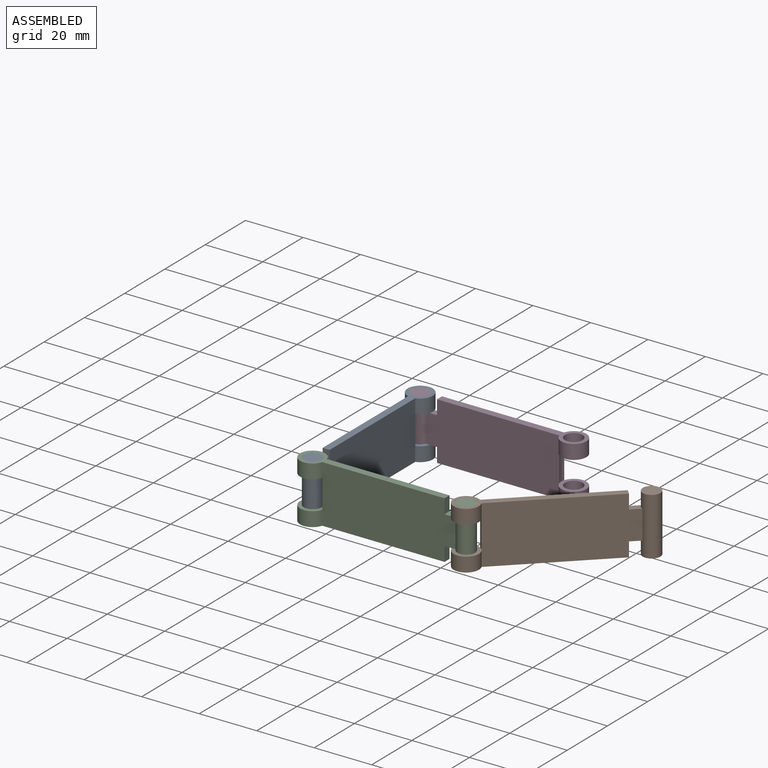
[diagram: assembled view]
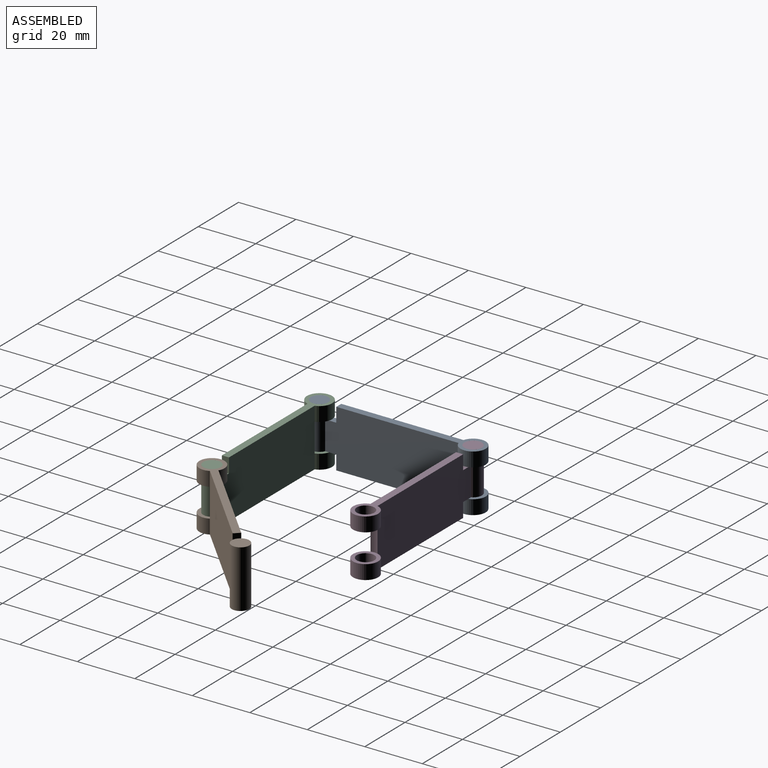
[diagram: assembled view, second angle]
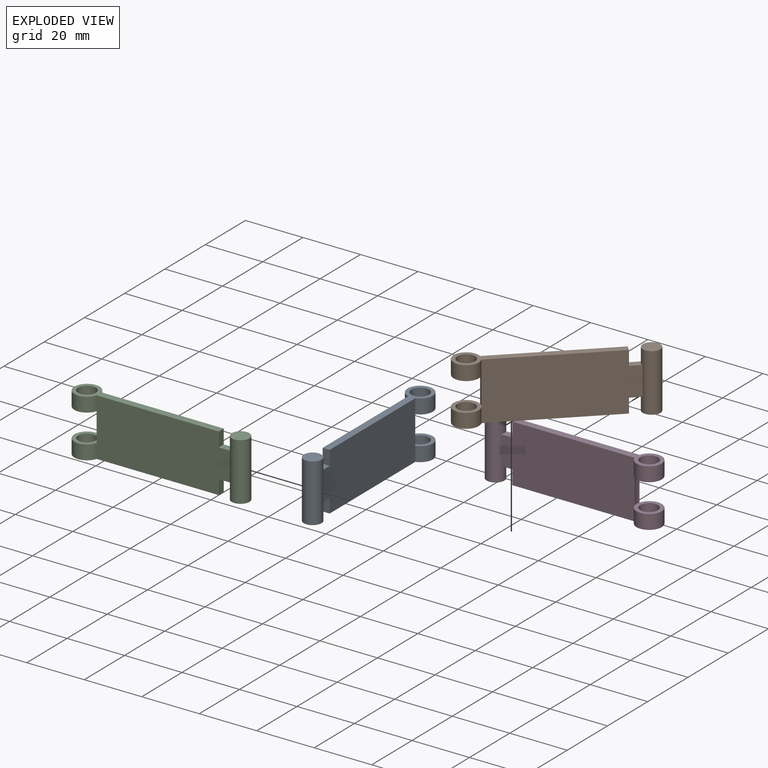
[diagram: exploded view]
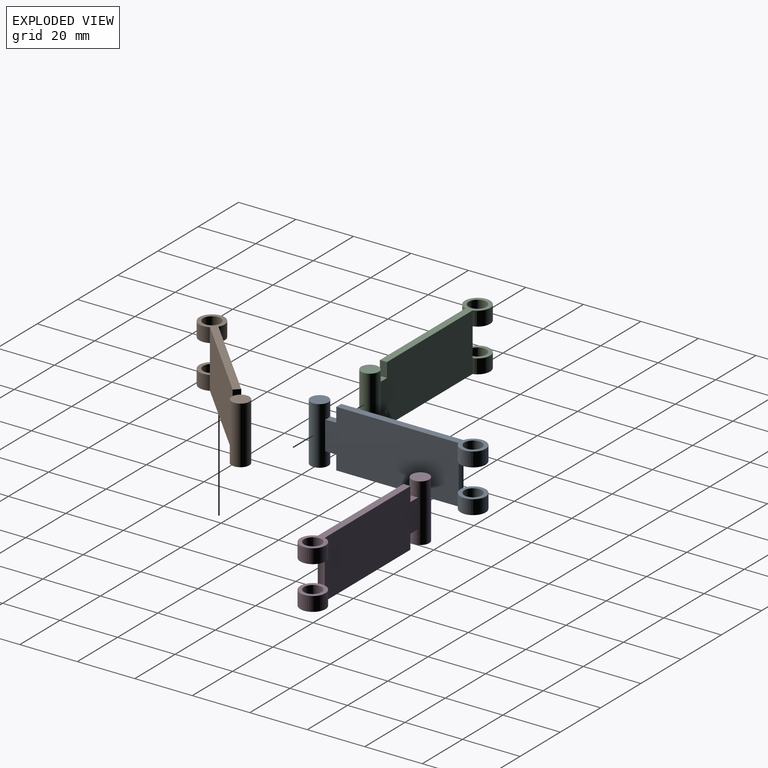
[diagram: exploded view, second angle]
ASSEMBLY  parts=4 mates=3
PART A: 18 faces, bbox 60.9x8.7x20 mm
  f0: plane 5x2.46mm, normal (1,0,0), area 12.3mm2, adj f2,f3,f6,f17
  f1: cylinder r=4.37mm len=10mm, axis (0,0,-1), area 24.9mm2, adj f2,f3,f9,f12
  f2: plane 46.43x20mm, normal (0,1,0), area 889.7mm2, adj f0,f1,f4,f5,f6,f7,f10,f13
  f3: plane 46.43x20mm, normal (0,-1,0), area 889.7mm2, adj f0,f1,f4,f5,f6,f7,f10,f13
  f4: plane 5x2.46mm, normal (1,0,0), area 12.3mm2, adj f2,f3,f5,f16
  f5: plane 51.11x8.75mm, normal (0,0,1), area 134.8mm2, adj f2,f3,f4,f10,f11
  f6: plane 51.11x8.75mm, normal (0,0,-1), area 134.8mm2, adj f0,f2,f3,f7,f8
  f7: cylinder r=4.37mm len=8.75mm, axis (0,0,-1), area 124.9mm2, adj f2,f3,f6,f9
  f8: cylinder r=3.07mm len=6.13mm, axis (0,0,-1), area 96.4mm2, adj f6,f9
  f9: plane 8.75x8.75mm, normal (0,0,1), area 30.5mm2, adj f1,f7,f8
  f10: cylinder r=4.37mm len=8.75mm, axis (0,0,-1), area 124.9mm2, adj f2,f3,f5,f12
  f11: cylinder r=3.07mm len=6.13mm, axis (0,0,-1), area 96.4mm2, adj f5,f12
  f12: plane 8.75x8.75mm, normal (0,0,-1), area 30.5mm2, adj f1,f10,f11
  f13: cylinder r=3.07mm len=20mm, axis (0,0,-1), area 360.1mm2, adj f2,f3,f14,f15,f16,f17
  f14: plane 6.13x6.13mm, normal (0,0,1), area 29.6mm2, adj f13
  f15: plane 6.13x6.13mm, normal (0,0,-1), area 29.6mm2, adj f13
  f16: plane 3.89x2.46mm, normal (0,0,1), area 9.1mm2, adj f2,f3,f4,f13
  f17: plane 3.89x2.46mm, normal (0,0,-1), area 9.1mm2, adj f0,f2,f3,f13
PART B: 18 faces, bbox 60.9x8.7x20 mm
  f0: plane 5x2.46mm, normal (1,0,0), area 12.3mm2, adj f2,f3,f6,f17
  f1: cylinder r=4.37mm len=10mm, axis (0,0,-1), area 24.9mm2, adj f2,f3,f9,f12
  f2: plane 46.43x20mm, normal (0,1,0), area 889.7mm2, adj f0,f1,f4,f5,f6,f7,f10,f13
  f3: plane 46.43x20mm, normal (0,-1,0), area 889.7mm2, adj f0,f1,f4,f5,f6,f7,f10,f13
  f4: plane 5x2.46mm, normal (1,0,0), area 12.3mm2, adj f2,f3,f5,f16
  f5: plane 51.11x8.75mm, normal (0,0,1), area 134.8mm2, adj f2,f3,f4,f10,f11
  f6: plane 51.11x8.75mm, normal (0,0,-1), area 134.8mm2, adj f0,f2,f3,f7,f8
  f7: cylinder r=4.37mm len=8.75mm, axis (0,0,-1), area 124.9mm2, adj f2,f3,f6,f9
  f8: cylinder r=3.07mm len=6.13mm, axis (0,0,-1), area 96.4mm2, adj f6,f9
  f9: plane 8.75x8.75mm, normal (0,0,1), area 30.5mm2, adj f1,f7,f8
  f10: cylinder r=4.37mm len=8.75mm, axis (0,0,-1), area 124.9mm2, adj f2,f3,f5,f12
  f11: cylinder r=3.07mm len=6.13mm, axis (0,0,-1), area 96.4mm2, adj f5,f12
  f12: plane 8.75x8.75mm, normal (0,0,-1), area 30.5mm2, adj f1,f10,f11
  f13: cylinder r=3.07mm len=20mm, axis (0,0,-1), area 360.1mm2, adj f2,f3,f14,f15,f16,f17
  f14: plane 6.13x6.13mm, normal (0,0,1), area 29.6mm2, adj f13
  f15: plane 6.13x6.13mm, normal (0,0,-1), area 29.6mm2, adj f13
  f16: plane 3.89x2.46mm, normal (0,0,1), area 9.1mm2, adj f2,f3,f4,f13
  f17: plane 3.89x2.46mm, normal (0,0,-1), area 9.1mm2, adj f0,f2,f3,f13
PART C: 18 faces, bbox 60.9x8.7x20 mm
  f0: plane 5x2.46mm, normal (1,0,0), area 12.3mm2, adj f2,f3,f6,f17
  f1: cylinder r=4.37mm len=10mm, axis (0,0,-1), area 24.9mm2, adj f2,f3,f9,f12
  f2: plane 46.43x20mm, normal (0,1,0), area 889.7mm2, adj f0,f1,f4,f5,f6,f7,f10,f13
  f3: plane 46.43x20mm, normal (0,-1,0), area 889.7mm2, adj f0,f1,f4,f5,f6,f7,f10,f13
  f4: plane 5x2.46mm, normal (1,0,0), area 12.3mm2, adj f2,f3,f5,f16
  f5: plane 51.11x8.75mm, normal (0,0,1), area 134.8mm2, adj f2,f3,f4,f10,f11
  f6: plane 51.11x8.75mm, normal (0,0,-1), area 134.8mm2, adj f0,f2,f3,f7,f8
  f7: cylinder r=4.37mm len=8.75mm, axis (0,0,-1), area 124.9mm2, adj f2,f3,f6,f9
  f8: cylinder r=3.07mm len=6.13mm, axis (0,0,-1), area 96.4mm2, adj f6,f9
  f9: plane 8.75x8.75mm, normal (0,0,1), area 30.5mm2, adj f1,f7,f8
  f10: cylinder r=4.37mm len=8.75mm, axis (0,0,-1), area 124.9mm2, adj f2,f3,f5,f12
  f11: cylinder r=3.07mm len=6.13mm, axis (0,0,-1), area 96.4mm2, adj f5,f12
  f12: plane 8.75x8.75mm, normal (0,0,-1), area 30.5mm2, adj f1,f10,f11
  f13: cylinder r=3.07mm len=20mm, axis (0,0,-1), area 360.1mm2, adj f2,f3,f14,f15,f16,f17
  f14: plane 6.13x6.13mm, normal (0,0,1), area 29.6mm2, adj f13
  f15: plane 6.13x6.13mm, normal (0,0,-1), area 29.6mm2, adj f13
  f16: plane 3.89x2.46mm, normal (0,0,1), area 9.1mm2, adj f2,f3,f4,f13
  f17: plane 3.89x2.46mm, normal (0,0,-1), area 9.1mm2, adj f0,f2,f3,f13
PART D: 18 faces, bbox 60.9x8.7x20 mm
  f0: plane 5x2.46mm, normal (1,0,0), area 12.3mm2, adj f2,f3,f6,f17
  f1: cylinder r=4.37mm len=10mm, axis (0,0,-1), area 24.9mm2, adj f2,f3,f9,f12
  f2: plane 46.43x20mm, normal (0,1,0), area 889.7mm2, adj f0,f1,f4,f5,f6,f7,f10,f13
  f3: plane 46.43x20mm, normal (0,-1,0), area 889.7mm2, adj f0,f1,f4,f5,f6,f7,f10,f13
  f4: plane 5x2.46mm, normal (1,0,0), area 12.3mm2, adj f2,f3,f5,f16
  f5: plane 51.11x8.75mm, normal (0,0,1), area 134.8mm2, adj f2,f3,f4,f10,f11
  f6: plane 51.11x8.75mm, normal (0,0,-1), area 134.8mm2, adj f0,f2,f3,f7,f8
  f7: cylinder r=4.37mm len=8.75mm, axis (0,0,-1), area 124.9mm2, adj f2,f3,f6,f9
  f8: cylinder r=3.07mm len=6.13mm, axis (0,0,-1), area 96.4mm2, adj f6,f9
  f9: plane 8.75x8.75mm, normal (0,0,1), area 30.5mm2, adj f1,f7,f8
  f10: cylinder r=4.37mm len=8.75mm, axis (0,0,-1), area 124.9mm2, adj f2,f3,f5,f12
  f11: cylinder r=3.07mm len=6.13mm, axis (0,0,-1), area 96.4mm2, adj f5,f12
  f12: plane 8.75x8.75mm, normal (0,0,-1), area 30.5mm2, adj f1,f10,f11
  f13: cylinder r=3.07mm len=20mm, axis (0,0,-1), area 360.1mm2, adj f2,f3,f14,f15,f16,f17
  f14: plane 6.13x6.13mm, normal (0,0,1), area 29.6mm2, adj f13
  f15: plane 6.13x6.13mm, normal (0,0,-1), area 29.6mm2, adj f13
  f16: plane 3.89x2.46mm, normal (0,0,1), area 9.1mm2, adj f2,f3,f4,f13
  f17: plane 3.89x2.46mm, normal (0,0,-1), area 9.1mm2, adj f0,f2,f3,f13
PLACE A rot(axis=(0,0,-1),90deg) t=(-45.98,-120.42,0.72)mm
PLACE B rot(axis=(0,0,1),43.8deg) t=(-61.68,-133.02,0.72)mm
PLACE C rot(axis=(-0.95,0.32,0),0deg) t=(-103.61,-97.95,0.72)mm
PLACE D rot(axis=(0,0,-1),180deg) t=(-68.45,-108.25,0.72)mm
MATE revolute D.f13 <-> A.f1  axis (0,0,1) through (-86,-84.53,20.72)mm
MATE revolute B.f1 <-> C.f13  axis (0,0,1) through (-32.56,-137.97,20.72)mm
MATE revolute A.f13 <-> C.f1  axis (0,0,1) through (-86,-137.97,20.72)mm
